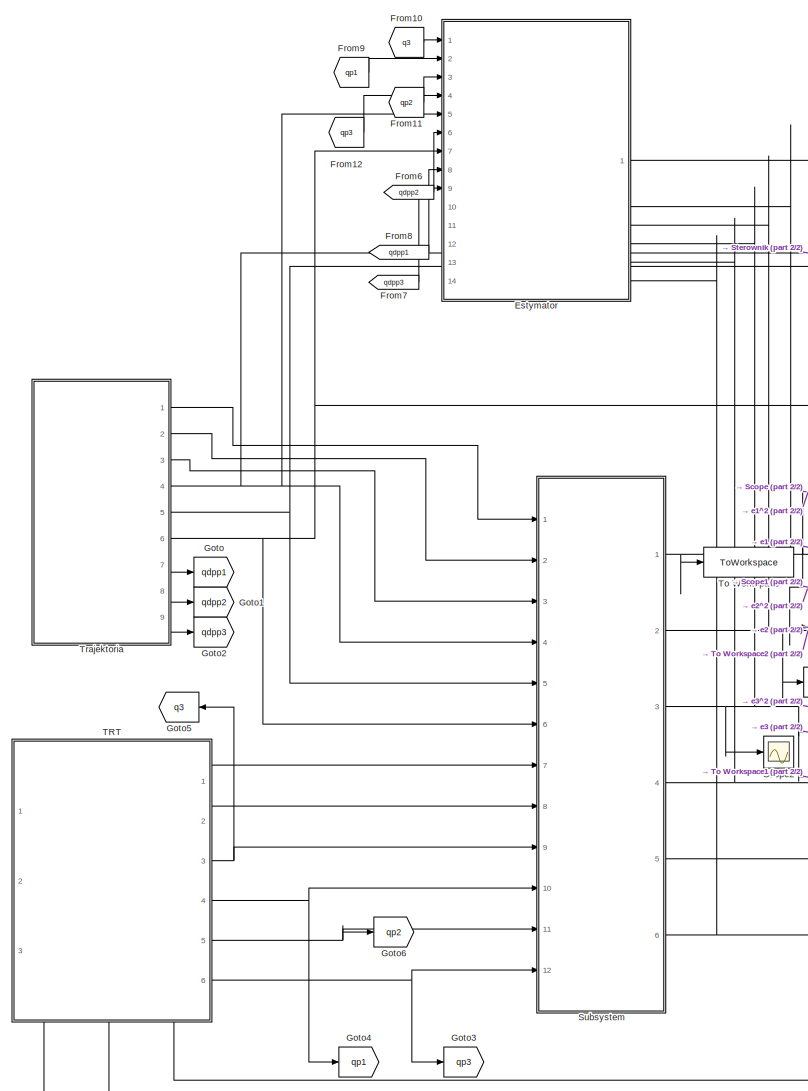
[diagram: root canvas - part 1/2, left side, full height]
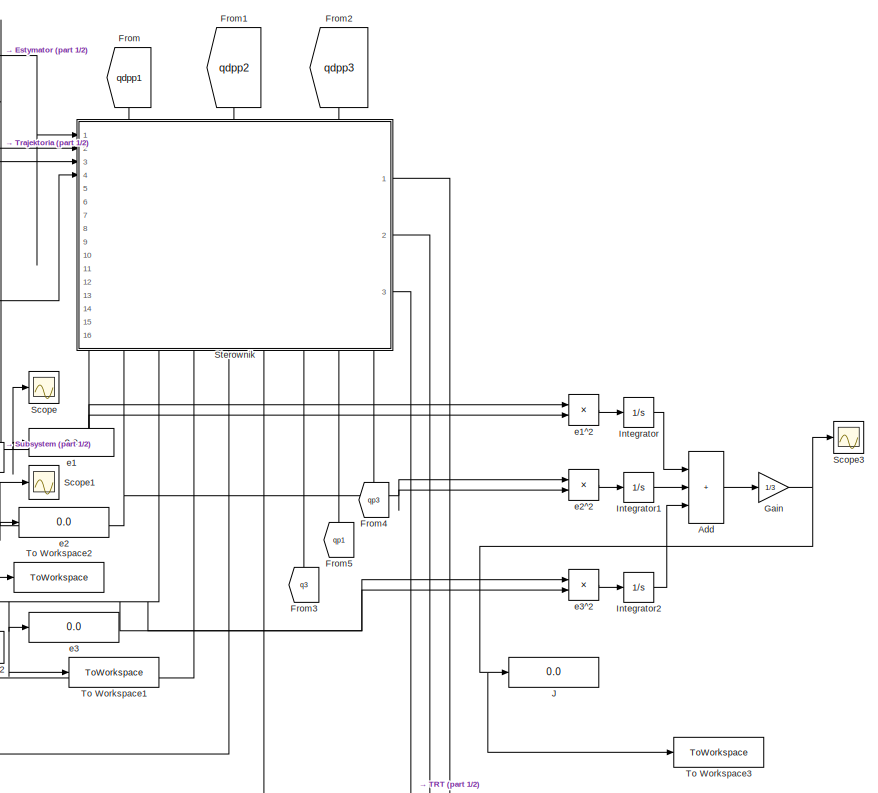
[diagram: root canvas - part 2/2, middle right region]
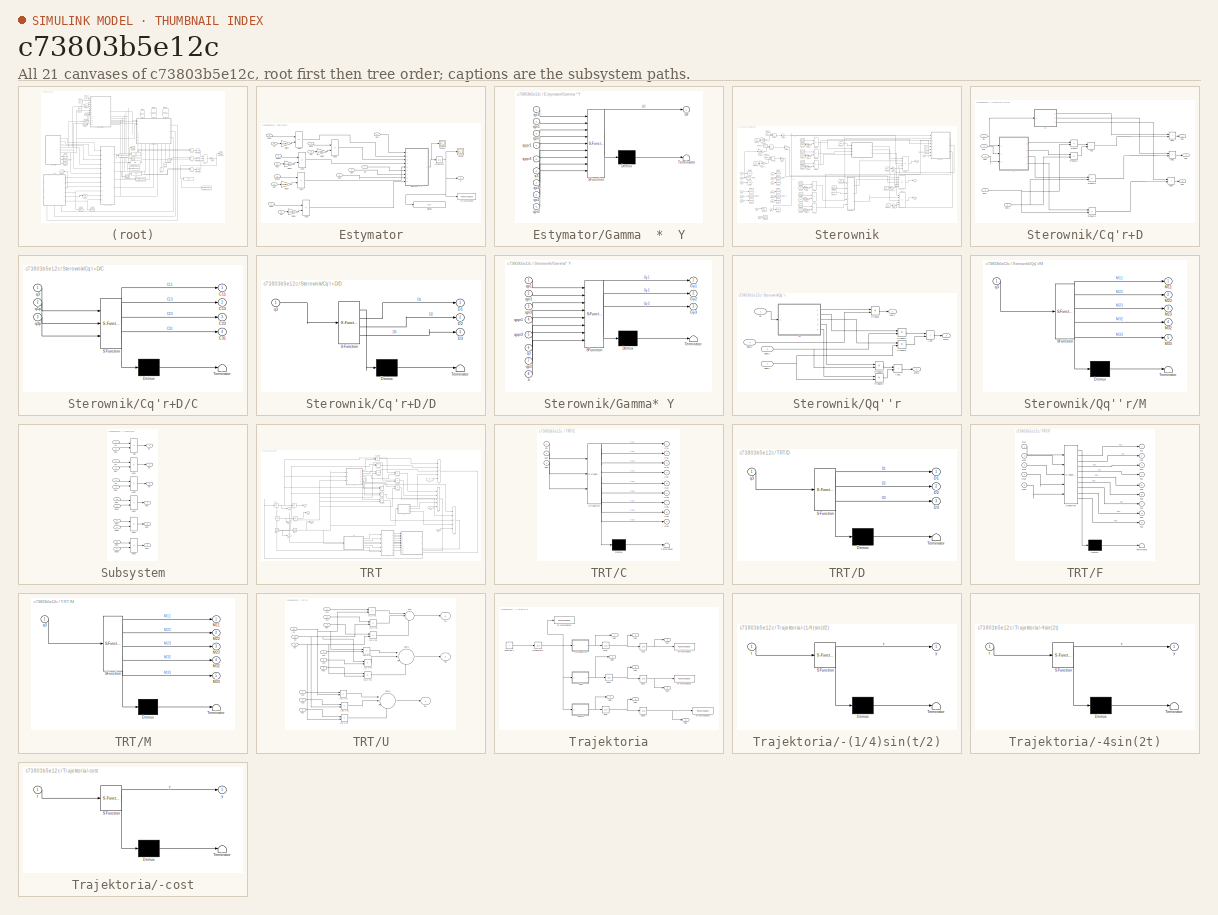
[diagram: thumbnail index - all 21 canvases of the model, root first then tree order]
MODEL slx_c73803b5e12c
KIND model
CONFIG AbsTol = auto
CONFIG EnableMultiTasking = off
CONFIG FixedStep = auto
CONFIG MaxStep = auto
CONFIG MinStep = auto
CONFIG RelTol = 1e-10
CONFIG SampleTimeConstraint = Unconstrained
CONFIG SolverName = ode45
CONFIG StartTime = 0.0
CONFIG StopTime = t_stop
BLOCK [Sum] Add
  IconShape = rectangular
  Inputs = +++
  Ports = [3, 1]
BLOCK [SubSystem] Estymator
  PortSchema = {"entries":[{"content":{"sides":[{"content":{"connectorIds":["In1","In2","In3","In4","In5","In6","In7","In8","In9"]},"type":"ConnectorPlacement.EquallySpacedRectSide","uuid":"6cfaf714-5927-4141-bb4b-e4e1d7c7a034"},{"content":{"connectorIds":["Out1","In10","In11","In12","In13","In14"],"side":"RIGHT"},"type":"ConnectorPlacement.EquallySpacedRectSide","uuid":"3cc1f1b0-216f-4715-97b4-4fb3b63e985b"},{"...<+323ch>
  Ports = [14, 1]
  RequestExecContextInheritance = off
BLOCK [Sum] Estymator/Add1
  IconShape = rectangular
  Inputs = +-
  Ports = [2, 1]
BLOCK [Sum] Estymator/Add2
  IconShape = rectangular
  Inputs = +-
  Ports = [2, 1]
BLOCK [Sum] Estymator/Add3
  IconShape = rectangular
  Inputs = +-
  Ports = [2, 1]
BLOCK [Sum] Estymator/Add4
  IconShape = rectangular
  Inputs = +-
  Ports = [2, 1]
BLOCK [Sum] Estymator/Add5
  IconShape = rectangular
  Inputs = +-
  Ports = [2, 1]
BLOCK [Display] Estymator/Display
  Decimation = 1
  Ports = [1]
BLOCK [Gain] Estymator/Gain1
  Gain = Delta
BLOCK [Gain] Estymator/Gain2
  Gain = Delta
BLOCK [Gain] Estymator/Gain3
  Gain = Delta
BLOCK [Gain] Estymator/Gain4
  Gain = Delta
BLOCK [Gain] Estymator/Gain5
  Gain = Delta
BLOCK [SubSystem] Estymator/Gamma  *  Y
  ErrorFcn = Stateflow.Translate.translate
  PermitHierarchicalResolution = ExplicitOnly
  Ports = [9, 1]
  RequestExecContextInheritance = off
  SFBlockType = MATLAB Function
  TreatAsAtomicUnit = on
BLOCK [Demux] Estymator/Gamma  *  Y/ Demux 
  Outputs = 1
  Ports = [1, 1]
BLOCK [S-Function] Estymator/Gamma  *  Y/ SFunction 
  EnableBusSupport = on
  FunctionName = sf_sfun
  Parameters = Gamma
  PortCounts = [9 2]
  Ports = [9, 2]
  SFcnIsStateOwnerBlock = off
  SFunctionDeploymentMode = off
  Tag = Stateflow S-Function 11
BLOCK [Terminator] Estymator/Gamma  *  Y/ Terminator 
BLOCK [Outport] Estymator/Gamma  *  Y/GY
BLOCK [Inport] Estymator/Gamma  *  Y/q3
  Port = 6
BLOCK [Inport] Estymator/Gamma  *  Y/qp1
BLOCK [Inport] Estymator/Gamma  *  Y/qp2
  Port = 8
BLOCK [Inport] Estymator/Gamma  *  Y/qp3
  Port = 7
BLOCK [Inport] Estymator/Gamma  *  Y/qppr1
  Port = 4
BLOCK [Inport] Estymator/Gamma  *  Y/qppr3
  Port = 5
BLOCK [Inport] Estymator/Gamma  *  Y/qpr1
  Port = 2
BLOCK [Inport] Estymator/Gamma  *  Y/qpr2
  Port = 9
BLOCK [Inport] Estymator/Gamma  *  Y/qpr3
  Port = 3
BLOCK [Integrator] Estymator/Integrator
  Ports = [1, 1]
BLOCK [Scope] Estymator/Scope
  Floating = off
  NumInputPorts = 1
  Ports = [1]
  ScopeSpecificationString = Simulink.scopes.TimeScopeBlockCfg('CurrentConfiguration', extmgr.ConfigurationSet(extmgr.Configuration('Core','General UI',true),extmgr.Configuration('Core','Source UI',true),extmgr.Configuration('Sources','WiredSimulink',true,'DataLoggingVariableName','ScopeData1'),extmgr.Configuration('Visuals','Time Domain',true,'SerializedDisplays',{struct('MinYLimReal','-761.49365','MaxYLimReal','651.17704','...<+1431ch>
BLOCK [Scope] Estymator/Scope1
  Floating = off
  NumInputPorts = 1
  Ports = [1]
  ScopeSpecificationString = Simulink.scopes.TimeScopeBlockCfg('CurrentConfiguration', extmgr.ConfigurationSet(extmgr.Configuration('Core','General UI',true),extmgr.Configuration('Core','Source UI',true),extmgr.Configuration('Sources','WiredSimulink',true,'DataLoggingVariableName','ScopeData3'),extmgr.Configuration('Visuals','Time Domain',true,'SerializedDisplays',{struct('MinYLimReal','-761.49365','MaxYLimReal','651.17704','...<+1432ch>
BLOCK [ToWorkspace] Estymator/To Workspace
  FixptAsFi = on
  MaxDataPoints = inf
  Ports = [1]
  SampleTime = -1
  VariableName = a
BLOCK [Outport] Estymator/a
BLOCK [Inport] Estymator/e1
  Port = 10
BLOCK [Inport] Estymator/e2
  NameLocation = left
  Port = 11
BLOCK [Inport] Estymator/e3
  Port = 12
BLOCK [Inport] Estymator/ep1
  Port = 13
BLOCK [Inport] Estymator/ep3
  Port = 14
BLOCK [Inport] Estymator/q3
  NameLocation = left
BLOCK [Inport] Estymator/qdp1
  Port = 5
BLOCK [Inport] Estymator/qdp2
  NameLocation = left
  Port = 6
BLOCK [Inport] Estymator/qdp3
  Port = 7
BLOCK [Inport] Estymator/qdpp1
  Port = 8
BLOCK [Inport] Estymator/qdpp3
  Port = 9
BLOCK [Inport] Estymator/qp1
  NameLocation = left
  Port = 2
BLOCK [Inport] Estymator/qp2
  NameLocation = left
  Port = 3
BLOCK [Inport] Estymator/qp3
  Port = 4
BLOCK [From] From
  GotoTag = qdpp1
  NameLocation = left
BLOCK [From] From1
  GotoTag = qdpp2
  NameLocation = left
BLOCK [From] From10
  GotoTag = q3
BLOCK [From] From11
  GotoTag = qp2
BLOCK [From] From12
  GotoTag = qp3
BLOCK [From] From2
  GotoTag = qdpp3
  NameLocation = left
BLOCK [From] From3
  GotoTag = q3
  NameLocation = right
BLOCK [From] From4
  GotoTag = qp3
  NameLocation = right
BLOCK [From] From5
  GotoTag = qp1
  NameLocation = right
BLOCK [From] From6
  GotoTag = qdpp2
BLOCK [From] From7
  GotoTag = qdpp3
BLOCK [From] From8
  GotoTag = qdpp1
BLOCK [From] From9
  GotoTag = qp1
BLOCK [Gain] Gain
  Gain = 1/3
BLOCK [Goto] Goto
  GotoTag = qdpp1
BLOCK [Goto] Goto1
  GotoTag = qdpp2
BLOCK [Goto] Goto2
  GotoTag = qdpp3
BLOCK [Goto] Goto3
  GotoTag = qp3
BLOCK [Goto] Goto4
  GotoTag = qp1
BLOCK [Goto] Goto5
  GotoTag = q3
  NameLocation = top
BLOCK [Goto] Goto6
  GotoTag = qp2
BLOCK [Integrator] Integrator
  Ports = [1, 1]
BLOCK [Integrator] Integrator1
  Ports = [1, 1]
BLOCK [Integrator] Integrator2
  Ports = [1, 1]
BLOCK [Display] J
  Decimation = 1
  Format = short_e
  Ports = [1]
BLOCK [Scope] Scope
  Floating = off
  NumInputPorts = 1
  Ports = [1]
  ScopeSpecificationString = Simulink.scopes.TimeScopeBlockCfg('CurrentConfiguration', extmgr.ConfigurationSet(extmgr.Configuration('Core','General UI',true),extmgr.Configuration('Core','Source UI',true),extmgr.Configuration('Sources','WiredSimulink',true),extmgr.Configuration('Visuals','Time Domain',true,'SerializedDisplays',{struct('MinYLimReal','-0.25373','MaxYLimReal','2.25041','YLabelReal','','MinYLimMag','0.00000','MaxY...<+1363ch>
BLOCK [Scope] Scope1
  Floating = off
  NumInputPorts = 1
  Ports = [1]
  ScopeSpecificationString = Simulink.scopes.TimeScopeBlockCfg('CurrentConfiguration', extmgr.ConfigurationSet(extmgr.Configuration('Core','General UI',true),extmgr.Configuration('Core','Source UI',true),extmgr.Configuration('Sources','WiredSimulink',true,'DataLoggingVariableName','ScopeData1'),extmgr.Configuration('Visuals','Time Domain',true,'SerializedDisplays',{struct('MinYLimReal','-0.52744','MaxYLimReal','3.39194','YLab...<+1370ch>
BLOCK [Scope] Scope2
  Floating = off
  NumInputPorts = 1
  Ports = [1]
  ScopeSpecificationString = Simulink.scopes.TimeScopeBlockCfg('CurrentConfiguration', extmgr.ConfigurationSet(extmgr.Configuration('Core','General UI',true),extmgr.Configuration('Core','Source UI',true),extmgr.Configuration('Sources','WiredSimulink',true,'DataLoggingVariableName','ScopeData2'),extmgr.Configuration('Visuals','Time Domain',true,'SerializedDisplays',{struct('MinYLimReal','-0.25331','MaxYLimReal','2.25037','YLab...<+1370ch>
BLOCK [Scope] Scope3
  Floating = off
  NumInputPorts = 1
  Ports = [1]
  ScopeSpecificationString = Simulink.scopes.TimeScopeBlockCfg('CurrentConfiguration', extmgr.ConfigurationSet(extmgr.Configuration('Core','General UI',true),extmgr.Configuration('Core','Source UI',true),extmgr.Configuration('Sources','WiredSimulink',true,'DataLoggingVariableName','ScopeData2'),extmgr.Configuration('Visuals','Time Domain',true,'SerializedDisplays',{struct('MinYLimReal','-0.17317','MaxYLimReal','1.55855','YLab...<+1394ch>
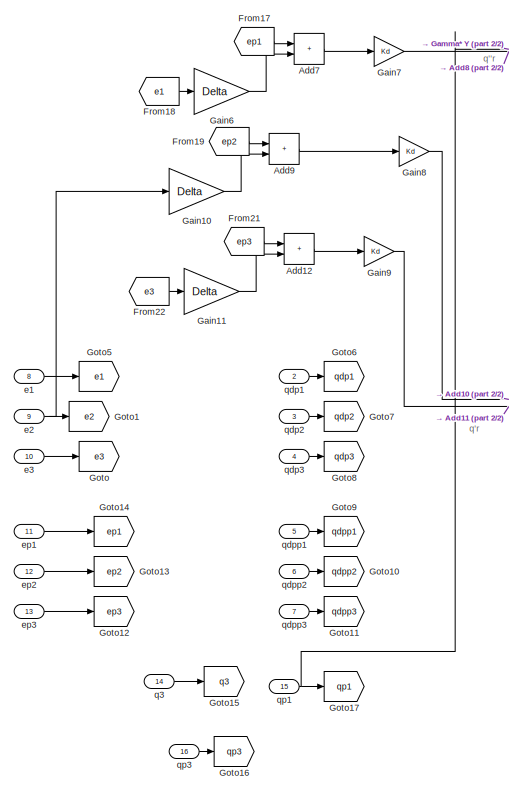
[diagram: Sterownik - part 1/2, left side, full height]
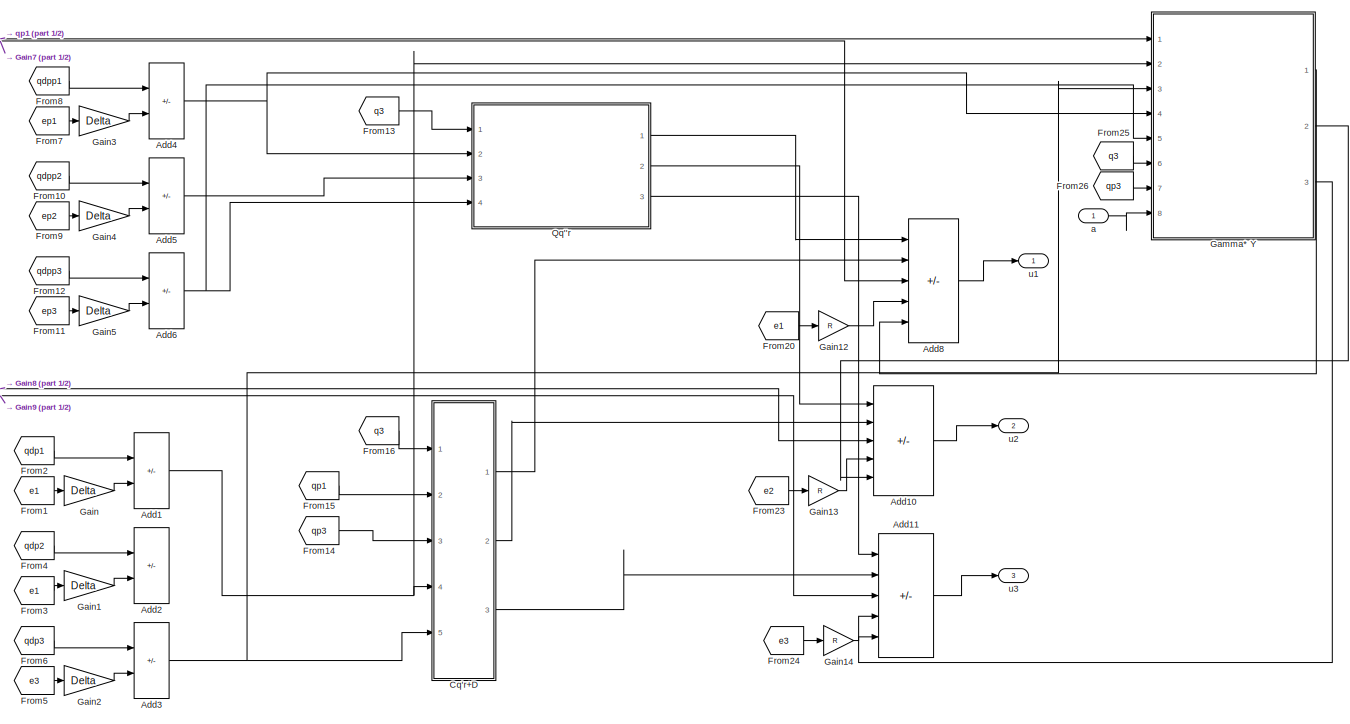
[diagram: Sterownik - part 2/2, center side, full height]
BLOCK [SubSystem] Sterownik
  PortSchema = {"entries":[{"content":{"sides":[{"content":{"connectorIds":["In1","In2","In3","In4"]},"type":"ConnectorPlacement.EquallySpacedRectSide","uuid":"3b6b04bd-f501-409c-86cd-e77f57a76356"},{"content":{"connectorIds":["Out1","Out2","Out3"],"side":"RIGHT"},"type":"ConnectorPlacement.EquallySpacedRectSide","uuid":"169b3e08-ed10-485c-953a-d5cdf046a8f4"},{"content":{"connectorIds":["In5","In6","In7"],"side"...<+493ch>
  Ports = [16, 3]
  RequestExecContextInheritance = off
BLOCK [Sum] Sterownik/Add1
  IconShape = rectangular
  Inputs = +-
  Ports = [2, 1]
BLOCK [Sum] Sterownik/Add10
  IconShape = rectangular
  Inputs = ++--+
  Ports = [5, 1]
BLOCK [Sum] Sterownik/Add11
  IconShape = rectangular
  Inputs = ++--+
  Ports = [5, 1]
BLOCK [Sum] Sterownik/Add12
  IconShape = rectangular
  Ports = [2, 1]
BLOCK [Sum] Sterownik/Add2
  Commented = on
  IconShape = rectangular
  Inputs = +-
  Ports = [2, 1]
BLOCK [Sum] Sterownik/Add3
  IconShape = rectangular
  Inputs = +-
  Ports = [2, 1]
BLOCK [Sum] Sterownik/Add4
  IconShape = rectangular
  Inputs = +-
  Ports = [2, 1]
BLOCK [Sum] Sterownik/Add5
  IconShape = rectangular
  Inputs = +-
  Ports = [2, 1]
BLOCK [Sum] Sterownik/Add6
  IconShape = rectangular
  Inputs = +-
  Ports = [2, 1]
BLOCK [Sum] Sterownik/Add7
  IconShape = rectangular
  Ports = [2, 1]
BLOCK [Sum] Sterownik/Add8
  IconShape = rectangular
  Inputs = ++--+
  Ports = [5, 1]
BLOCK [Sum] Sterownik/Add9
  IconShape = rectangular
  Ports = [2, 1]
BLOCK [SubSystem] Sterownik/Cq'r+D
  Ports = [5, 3]
  RequestExecContextInheritance = off
BLOCK [Sum] Sterownik/Cq'r+D/Add
  IconShape = rectangular
  Ports = [2, 1]
BLOCK [Sum] Sterownik/Cq'r+D/Add1
  IconShape = rectangular
  Ports = [2, 1]
BLOCK [Sum] Sterownik/Cq'r+D/Add2
  IconShape = rectangular
  Ports = [2, 1]
BLOCK [Sum] Sterownik/Cq'r+D/Add3
  IconShape = rectangular
  Ports = [2, 1]
BLOCK [SubSystem] Sterownik/Cq'r+D/C
  ErrorFcn = Stateflow.Translate.translate
  PermitHierarchicalResolution = ExplicitOnly
  Ports = [3, 4]
  RequestExecContextInheritance = off
  SFBlockType = MATLAB Function
  TreatAsAtomicUnit = on
BLOCK [Demux] Sterownik/Cq'r+D/C/ Demux 
  Outputs = 1
  Ports = [1, 1]
BLOCK [S-Function] Sterownik/Cq'r+D/C/ SFunction 
  EnableBusSupport = on
  FunctionName = sf_sfun
  Parameters = l2,l3,m3
  PortCounts = [3 5]
  Ports = [3, 5]
  SFcnIsStateOwnerBlock = off
  SFunctionDeploymentMode = off
  Tag = Stateflow S-Function 9
BLOCK [Terminator] Sterownik/Cq'r+D/C/ Terminator 
BLOCK [Outport] Sterownik/Cq'r+D/C/C11
BLOCK [Outport] Sterownik/Cq'r+D/C/C13
  Port = 2
BLOCK [Outport] Sterownik/Cq'r+D/C/C23
  Port = 3
BLOCK [Outport] Sterownik/Cq'r+D/C/C31
  Port = 4
BLOCK [Inport] Sterownik/Cq'r+D/C/q1p
  Port = 2
BLOCK [Inport] Sterownik/Cq'r+D/C/q3
BLOCK [Inport] Sterownik/Cq'r+D/C/q3p
  Port = 3
BLOCK [Outport] Sterownik/Cq'r+D/CD1
BLOCK [Outport] Sterownik/Cq'r+D/CD2
  Port = 2
BLOCK [Outport] Sterownik/Cq'r+D/CD3
  Port = 3
BLOCK [SubSystem] Sterownik/Cq'r+D/D
  ErrorFcn = Stateflow.Translate.translate
  PermitHierarchicalResolution = ExplicitOnly
  Ports = [1, 3]
  RequestExecContextInheritance = off
  SFBlockType = MATLAB Function
  TreatAsAtomicUnit = on
BLOCK [Demux] Sterownik/Cq'r+D/D/ Demux 
  Outputs = 1
  Ports = [1, 1]
BLOCK [S-Function] Sterownik/Cq'r+D/D/ SFunction 
  EnableBusSupport = on
  FunctionName = sf_sfun
  Parameters = g,l3,m2,m3
  PortCounts = [1 4]
  Ports = [1, 4]
  SFcnIsStateOwnerBlock = off
  SFunctionDeploymentMode = off
  Tag = Stateflow S-Function 10
BLOCK [Terminator] Sterownik/Cq'r+D/D/ Terminator 
BLOCK [Outport] Sterownik/Cq'r+D/D/D1
BLOCK [Outport] Sterownik/Cq'r+D/D/D2
  Port = 2
BLOCK [Outport] Sterownik/Cq'r+D/D/D3
  Port = 3
BLOCK [Inport] Sterownik/Cq'r+D/D/q3
BLOCK [Product] Sterownik/Cq'r+D/Product
  Ports = [2, 1]
BLOCK [Product] Sterownik/Cq'r+D/Product1
  Ports = [2, 1]
BLOCK [Product] Sterownik/Cq'r+D/Product2
  Ports = [2, 1]
BLOCK [Product] Sterownik/Cq'r+D/Product3
  Ports = [2, 1]
BLOCK [Inport] Sterownik/Cq'r+D/q1p
  Port = 2
BLOCK [Inport] Sterownik/Cq'r+D/q3
BLOCK [Inport] Sterownik/Cq'r+D/q3p
  Port = 3
BLOCK [Inport] Sterownik/Cq'r+D/qpr1
  Port = 4
BLOCK [Inport] Sterownik/Cq'r+D/qpr3
  Port = 5
BLOCK [From] Sterownik/From1
  GotoTag = e1
BLOCK [From] Sterownik/From10
  GotoTag = qdpp2
BLOCK [From] Sterownik/From11
  GotoTag = ep3
BLOCK [From] Sterownik/From12
  GotoTag = qdpp3
BLOCK [From] Sterownik/From13
  GotoTag = q3
BLOCK [From] Sterownik/From14
  GotoTag = qp3
BLOCK [From] Sterownik/From15
  GotoTag = qp1
BLOCK [From] Sterownik/From16
  GotoTag = q3
BLOCK [From] Sterownik/From17
  GotoTag = ep1
BLOCK [From] Sterownik/From18
  GotoTag = e1
BLOCK [From] Sterownik/From19
  GotoTag = ep2
BLOCK [From] Sterownik/From2
  GotoTag = qdp1
BLOCK [From] Sterownik/From20
  GotoTag = e1
BLOCK [From] Sterownik/From21
  GotoTag = ep3
BLOCK [From] Sterownik/From22
  GotoTag = e3
BLOCK [From] Sterownik/From23
  GotoTag = e2
BLOCK [From] Sterownik/From24
  GotoTag = e3
BLOCK [From] Sterownik/From25
  GotoTag = q3
BLOCK [From] Sterownik/From26
  GotoTag = qp3
BLOCK [From] Sterownik/From3
  Commented = on
  GotoTag = e1
BLOCK [From] Sterownik/From4
  Commented = on
  GotoTag = qdp2
BLOCK [From] Sterownik/From5
  GotoTag = e3
BLOCK [From] Sterownik/From6
  GotoTag = qdp3
BLOCK [From] Sterownik/From7
  GotoTag = ep1
BLOCK [From] Sterownik/From8
  GotoTag = qdpp1
BLOCK [From] Sterownik/From9
  GotoTag = ep2
BLOCK [Gain] Sterownik/Gain
  Gain = Delta
BLOCK [Gain] Sterownik/Gain1
  Commented = on
  Gain = Delta
BLOCK [Gain] Sterownik/Gain10
  Gain = Delta
BLOCK [Gain] Sterownik/Gain11
  Gain = Delta
BLOCK [Gain] Sterownik/Gain12
  Gain = R
BLOCK [Gain] Sterownik/Gain13
  Gain = R
BLOCK [Gain] Sterownik/Gain14
  Gain = R
BLOCK [Gain] Sterownik/Gain2
  Gain = Delta
BLOCK [Gain] Sterownik/Gain3
  Gain = Delta
BLOCK [Gain] Sterownik/Gain4
  Gain = Delta
BLOCK [Gain] Sterownik/Gain5
  Gain = Delta
BLOCK [Gain] Sterownik/Gain6
  Gain = Delta
BLOCK [Gain] Sterownik/Gain7
  Gain = Kd
BLOCK [Gain] Sterownik/Gain8
  Gain = Kd
BLOCK [Gain] Sterownik/Gain9
  Gain = Kd
BLOCK [SubSystem] Sterownik/Gamma* Y
  ErrorFcn = Stateflow.Translate.translate
  PermitHierarchicalResolution = ExplicitOnly
  Ports = [8, 3]
  RequestExecContextInheritance = off
  SFBlockType = MATLAB Function
  TreatAsAtomicUnit = on
BLOCK [Demux] Sterownik/Gamma* Y/ Demux 
  Outputs = 1
  Ports = [1, 1]
BLOCK [S-Function] Sterownik/Gamma* Y/ SFunction 
  EnableBusSupport = on
  FunctionName = sf_sfun
  PortCounts = [8 4]
  Ports = [8, 4]
  SFcnIsStateOwnerBlock = off
  SFunctionDeploymentMode = off
  Tag = Stateflow S-Function 12
BLOCK [Terminator] Sterownik/Gamma* Y/ Terminator 
BLOCK [Outport] Sterownik/Gamma* Y/Gy1
BLOCK [Outport] Sterownik/Gamma* Y/Gy2
  Port = 2
BLOCK [Outport] Sterownik/Gamma* Y/Gy3
  Port = 3
BLOCK [Inport] Sterownik/Gamma* Y/a
  Port = 8
BLOCK [Inport] Sterownik/Gamma* Y/q3
  Port = 6
BLOCK [Inport] Sterownik/Gamma* Y/qp1
BLOCK [Inport] Sterownik/Gamma* Y/qp3
  Port = 7
BLOCK [Inport] Sterownik/Gamma* Y/qppr1
  Port = 4
BLOCK [Inport] Sterownik/Gamma* Y/qppr3
  Port = 5
BLOCK [Inport] Sterownik/Gamma* Y/qpr1
  Port = 2
BLOCK [Inport] Sterownik/Gamma* Y/qpr3
  Port = 3
BLOCK [Goto] Sterownik/Goto
  GotoTag = e3
BLOCK [Goto] Sterownik/Goto1
  GotoTag = e2
BLOCK [Goto] Sterownik/Goto10
  GotoTag = qdpp2
BLOCK [Goto] Sterownik/Goto11
  GotoTag = qdpp3
BLOCK [Goto] Sterownik/Goto12
  GotoTag = ep3
BLOCK [Goto] Sterownik/Goto13
  GotoTag = ep2
BLOCK [Goto] Sterownik/Goto14
  GotoTag = ep1
BLOCK [Goto] Sterownik/Goto15
  GotoTag = q3
BLOCK [Goto] Sterownik/Goto16
  GotoTag = qp3
BLOCK [Goto] Sterownik/Goto17
  GotoTag = qp1
BLOCK [Goto] Sterownik/Goto5
  GotoTag = e1
BLOCK [Goto] Sterownik/Goto6
  GotoTag = qdp1
BLOCK [Goto] Sterownik/Goto7
  GotoTag = qdp2
BLOCK [Goto] Sterownik/Goto8
  GotoTag = qdp3
BLOCK [Goto] Sterownik/Goto9
  GotoTag = qdpp1
BLOCK [SubSystem] Sterownik/Qq''r
  Ports = [4, 3]
  RequestExecContextInheritance = off
BLOCK [Sum] Sterownik/Qq''r/Add
  IconShape = rectangular
  Ports = [2, 1]
BLOCK [Sum] Sterownik/Qq''r/Add1
  IconShape = rectangular
  Ports = [2, 1]
BLOCK [SubSystem] Sterownik/Qq''r/M
  ErrorFcn = Stateflow.Translate.translate
  PermitHierarchicalResolution = ExplicitOnly
  Ports = [1, 5]
  RequestExecContextInheritance = off
  SFBlockType = MATLAB Function
  TreatAsAtomicUnit = on
BLOCK [Demux] Sterownik/Qq''r/M/ Demux 
  Outputs = 1
  Ports = [1, 1]
BLOCK [S-Function] Sterownik/Qq''r/M/ SFunction 
  EnableBusSupport = on
  FunctionName = sf_sfun
  Parameters = l2,l3,m2,m3
  PortCounts = [1 6]
  Ports = [1, 6]
  SFcnIsStateOwnerBlock = off
  SFunctionDeploymentMode = off
  Tag = Stateflow S-Function 8
BLOCK [Terminator] Sterownik/Qq''r/M/ Terminator 
BLOCK [Outport] Sterownik/Qq''r/M/M11
BLOCK [Outport] Sterownik/Qq''r/M/M22
  Port = 2
BLOCK [Outport] Sterownik/Qq''r/M/M23
  Port = 3
BLOCK [Outport] Sterownik/Qq''r/M/M32
  Port = 4
BLOCK [Outport] Sterownik/Qq''r/M/M33
  Port = 5
BLOCK [Inport] Sterownik/Qq''r/M/q3
BLOCK [Outport] Sterownik/Qq''r/Mqr1
BLOCK [Outport] Sterownik/Qq''r/Mqr2
  Port = 2
BLOCK [Outport] Sterownik/Qq''r/Mqr3
  Port = 3
BLOCK [Product] Sterownik/Qq''r/Product
  Ports = [2, 1]
BLOCK [Product] Sterownik/Qq''r/Product1
  Ports = [2, 1]
BLOCK [Product] Sterownik/Qq''r/Product2
  Ports = [2, 1]
BLOCK [Product] Sterownik/Qq''r/Product3
  Ports = [2, 1]
BLOCK [Product] Sterownik/Qq''r/Product4
  Ports = [2, 1]
BLOCK [Inport] Sterownik/Qq''r/q3
BLOCK [Inport] Sterownik/Qq''r/qppr1
  Port = 2
BLOCK [Inport] Sterownik/Qq''r/qppr2
  Port = 3
BLOCK [Inport] Sterownik/Qq''r/qppr3
  Port = 4
BLOCK [Inport] Sterownik/a
BLOCK [Inport] Sterownik/e1
  Port = 8
BLOCK [Inport] Sterownik/e2
  Port = 9
BLOCK [Inport] Sterownik/e3
  Port = 10
BLOCK [Inport] Sterownik/ep1
  Port = 11
BLOCK [Inport] Sterownik/ep2
  Port = 12
BLOCK [Inport] Sterownik/ep3
  Port = 13
BLOCK [Inport] Sterownik/q3
  Port = 14
BLOCK [Inport] Sterownik/qdp1
  Port = 2
BLOCK [Inport] Sterownik/qdp2
  Port = 3
BLOCK [Inport] Sterownik/qdp3
  Port = 4
BLOCK [Inport] Sterownik/qdpp1
  Port = 5
BLOCK [Inport] Sterownik/qdpp2
  Port = 6
BLOCK [Inport] Sterownik/qdpp3
  Port = 7
BLOCK [Inport] Sterownik/qp1
  Port = 15
BLOCK [Inport] Sterownik/qp3
  Port = 16
BLOCK [Outport] Sterownik/u1
BLOCK [Outport] Sterownik/u2
  Port = 2
BLOCK [Outport] Sterownik/u3
  Port = 3
BLOCK [SubSystem] Subsystem
  Ports = [12, 6]
  RequestExecContextInheritance = off
BLOCK [Sum] Subsystem/Add
  IconShape = rectangular
  Inputs = +-
  Ports = [2, 1]
BLOCK [Sum] Subsystem/Add1
  IconShape = rectangular
  Inputs = +-
  Ports = [2, 1]
BLOCK [Sum] Subsystem/Add2
  IconShape = rectangular
  Inputs = +-
  Ports = [2, 1]
BLOCK [Sum] Subsystem/Add3
  IconShape = rectangular
  Inputs = +-
  Ports = [2, 1]
BLOCK [Sum] Subsystem/Add4
  IconShape = rectangular
  Inputs = +-
  Ports = [2, 1]
BLOCK [Sum] Subsystem/Add5
  IconShape = rectangular
  Inputs = +-
  Ports = [2, 1]
BLOCK [Outport] Subsystem/e1
BLOCK [Outport] Subsystem/e2
  Port = 2
BLOCK [Outport] Subsystem/e3
  Port = 3
BLOCK [Outport] Subsystem/ep1
  Port = 4
BLOCK [Outport] Subsystem/ep2
  Port = 5
BLOCK [Outport] Subsystem/ep3
  Port = 6
BLOCK [Inport] Subsystem/q1
  Port = 7
BLOCK [Inport] Subsystem/q2
  Port = 8
BLOCK [Inport] Subsystem/q3
  Port = 9
BLOCK [Inport] Subsystem/qd1
BLOCK [Inport] Subsystem/qd2
  Port = 2
BLOCK [Inport] Subsystem/qd3
  Port = 3
BLOCK [Inport] Subsystem/qp1
  Port = 10
BLOCK [Inport] Subsystem/qp2
  Port = 11
BLOCK [Inport] Subsystem/qp3
  Port = 12
BLOCK [Inport] Subsystem/qpd1
  Port = 4
BLOCK [Inport] Subsystem/qpd2
  Port = 5
BLOCK [Inport] Subsystem/qpd3
  Port = 6
BLOCK [SubSystem] TRT
  PortSchema = {"entries":[{"content":{"sides":[{"content":{"connectorIds":[]},"type":"ConnectorPlacement.EquallySpacedRectSide","uuid":"a13a475c-743e-4b68-af9c-5e746e266b9c"},{"content":{"connectorIds":["Out1","Out2","Out3","Out4","Out5","Out6"],"side":"RIGHT"},"type":"ConnectorPlacement.EquallySpacedRectSide","uuid":"c38df9ec-cc79-4f7b-9920-87d5ccf64580"},{"content":{"connectorIds":[],"side":"TOP"},"type":"Con...<+431ch>
  Ports = [3, 6]
  RequestExecContextInheritance = off
BLOCK [SubSystem] TRT/C
  ErrorFcn = Stateflow.Translate.translate
  PermitHierarchicalResolution = ExplicitOnly
  Ports = [3, 9]
  RequestExecContextInheritance = off
  SFBlockType = MATLAB Function
  TreatAsAtomicUnit = on
BLOCK [Demux] TRT/C/ Demux 
  Outputs = 1
  Ports = [1, 1]
BLOCK [S-Function] TRT/C/ SFunction 
  EnableBusSupport = on
  FunctionName = sf_sfun
  Parameters = l2,l3,m3
  PortCounts = [3 10]
  Ports = [3, 10]
  SFcnIsStateOwnerBlock = off
  SFunctionDeploymentMode = off
  Tag = Stateflow S-Function 3
BLOCK [Terminator] TRT/C/ Terminator 
BLOCK [Outport] TRT/C/C11
BLOCK [Outport] TRT/C/C12
  Port = 2
BLOCK [Outport] TRT/C/C13
  Port = 3
BLOCK [Outport] TRT/C/C21
  Port = 4
BLOCK [Outport] TRT/C/C22
  Port = 5
BLOCK [Outport] TRT/C/C23
  Port = 6
BLOCK [Outport] TRT/C/C31
  Port = 7
BLOCK [Outport] TRT/C/C32
  Port = 8
BLOCK [Outport] TRT/C/C33
  Port = 9
BLOCK [Inport] TRT/C/q1p
  Port = 2
BLOCK [Inport] TRT/C/q3
BLOCK [Inport] TRT/C/q3p
  Port = 3
BLOCK [SubSystem] TRT/D
  ErrorFcn = Stateflow.Translate.translate
  PermitHierarchicalResolution = ExplicitOnly
  Ports = [1, 3]
  RequestExecContextInheritance = off
  SFBlockType = MATLAB Function
  TreatAsAtomicUnit = on
BLOCK [Demux] TRT/D/ Demux 
  Outputs = 1
  Ports = [1, 1]
BLOCK [S-Function] TRT/D/ SFunction 
  EnableBusSupport = on
  FunctionName = sf_sfun
  Parameters = g,l3,m2,m3
  PortCounts = [1 4]
  Ports = [1, 4]
  SFcnIsStateOwnerBlock = off
  SFunctionDeploymentMode = off
  Tag = Stateflow S-Function 4
BLOCK [Terminator] TRT/D/ Terminator 
BLOCK [Outport] TRT/D/D1
BLOCK [Outport] TRT/D/D2
  Port = 2
BLOCK [Outport] TRT/D/D3
  Port = 3
BLOCK [Inport] TRT/D/q3
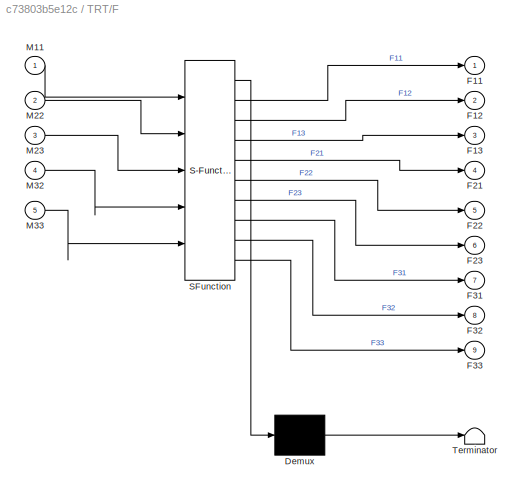
BLOCK [SubSystem] TRT/F
  ErrorFcn = Stateflow.Translate.translate
  PermitHierarchicalResolution = ExplicitOnly
  Ports = [5, 9]
  RequestExecContextInheritance = off
  SFBlockType = MATLAB Function
  TreatAsAtomicUnit = on
BLOCK [Demux] TRT/F/ Demux 
  Outputs = 1
  Ports = [1, 1]
BLOCK [S-Function] TRT/F/ SFunction 
  EnableBusSupport = on
  FunctionName = sf_sfun
  PortCounts = [5 10]
  Ports = [5, 10]
  SFcnIsStateOwnerBlock = off
  SFunctionDeploymentMode = off
  Tag = Stateflow S-Function 7
BLOCK [Terminator] TRT/F/ Terminator 
BLOCK [Outport] TRT/F/F11
BLOCK [Outport] TRT/F/F12
  Port = 2
BLOCK [Outport] TRT/F/F13
  Port = 3
BLOCK [Outport] TRT/F/F21
  Port = 4
BLOCK [Outport] TRT/F/F22
  Port = 5
BLOCK [Outport] TRT/F/F23
  Port = 6
BLOCK [Outport] TRT/F/F31
  Port = 7
BLOCK [Outport] TRT/F/F32
  Port = 8
BLOCK [Outport] TRT/F/F33
  Port = 9
BLOCK [Inport] TRT/F/M11
BLOCK [Inport] TRT/F/M22
  Port = 2
BLOCK [Inport] TRT/F/M23
  Port = 3
BLOCK [Inport] TRT/F/M32
  Port = 4
BLOCK [Inport] TRT/F/M33
  Port = 5
BLOCK [SubSystem] TRT/M
  ErrorFcn = Stateflow.Translate.translate
  PermitHierarchicalResolution = ExplicitOnly
  Ports = [1, 5]
  RequestExecContextInheritance = off
  SFBlockType = MATLAB Function
  TreatAsAtomicUnit = on
BLOCK [Demux] TRT/M/ Demux 
  Outputs = 1
  Ports = [1, 1]
BLOCK [S-Function] TRT/M/ SFunction 
  EnableBusSupport = on
  FunctionName = sf_sfun
  Parameters = l2,l3,m2,m3
  PortCounts = [1 6]
  Ports = [1, 6]
  SFcnIsStateOwnerBlock = off
  SFunctionDeploymentMode = off
  Tag = Stateflow S-Function 2
BLOCK [Terminator] TRT/M/ Terminator 
BLOCK [Outport] TRT/M/M11
BLOCK [Outport] TRT/M/M22
  Port = 2
BLOCK [Outport] TRT/M/M23
  Port = 3
BLOCK [Outport] TRT/M/M32
  Port = 4
BLOCK [Outport] TRT/M/M33
  Port = 5
BLOCK [Inport] TRT/M/q3
BLOCK [SubSystem] TRT/U
  PortSchema = {"entries":[{"content":{"sides":[{"content":{"connectorIds":["In1","In2","In3","In4","In5","In6","In7","In8","In9"]},"type":"ConnectorPlacement.EquallySpacedRectSide","uuid":"30710644-9e06-400a-91a1-da9eb46b634c"},{"content":{"connectorIds":["In10","In11","In12"],"side":"RIGHT"},"type":"ConnectorPlacement.EquallySpacedRectSide","uuid":"450ad47e-e867-455a-81bd-6c2cfcae7014"},{"content":{"connectorI...<+466ch>
  Ports = [12, 3]
  RequestExecContextInheritance = off
BLOCK [Inport] TRT/U/F11
BLOCK [Inport] TRT/U/F12
  Port = 2
BLOCK [Inport] TRT/U/F13
  Port = 4
BLOCK [Inport] TRT/U/F21
  Port = 3
BLOCK [Inport] TRT/U/F22
  Port = 5
BLOCK [Inport] TRT/U/F23
  Port = 6
BLOCK [Inport] TRT/U/F31
  Port = 7
BLOCK [Inport] TRT/U/F32
  Port = 8
BLOCK [Inport] TRT/U/F33
  Port = 9
BLOCK [Sum] TRT/U/Sum
  Inputs = |+++
  Ports = [3, 1]
BLOCK [Sum] TRT/U/Sum1
  Inputs = |+++
  Ports = [3, 1]
BLOCK [Sum] TRT/U/Sum2
  Inputs = |+++
  Ports = [3, 1]
BLOCK [Product] TRT/U/f11 x h1
  Ports = [2, 1]
BLOCK [Product] TRT/U/f12 x h2
  Ports = [2, 1]
BLOCK [Product] TRT/U/f13 x h3
  Ports = [2, 1]
BLOCK [Product] TRT/U/f21 x h1
  Ports = [2, 1]
BLOCK [Product] TRT/U/f22 x h2
  Ports = [2, 1]
BLOCK [Product] TRT/U/f23 x h3
  Ports = [2, 1]
BLOCK [Product] TRT/U/f31 x h1
  Ports = [2, 1]
BLOCK [Product] TRT/U/f32 x h2
  Ports = [2, 1]
BLOCK [Product] TRT/U/f33 x h3
  Ports = [2, 1]
BLOCK [Inport] TRT/U/h1
  Port = 12
BLOCK [Inport] TRT/U/h2
  Port = 11
BLOCK [Inport] TRT/U/h3
  Port = 10
BLOCK [Outport] TRT/U/in1
  Port = 3
BLOCK [Outport] TRT/U/in2
  Port = 2
BLOCK [Outport] TRT/U/in3
BLOCK [Product] TRT/c11*q'1
  Ports = [2, 1]
BLOCK [Product] TRT/c12*q'2
  Ports = [2, 1]
BLOCK [Product] TRT/c13*q'3
  Ports = [2, 1]
BLOCK [Product] TRT/c21*q'1
  Ports = [2, 1]
BLOCK [Product] TRT/c22*q'2
  Ports = [2, 1]
BLOCK [Product] TRT/c23*q'3
  Ports = [2, 1]
BLOCK [Product] TRT/c31*q'1
  Ports = [2, 1]
BLOCK [Product] TRT/c32*q'2
  Ports = [2, 1]
BLOCK [Product] TRT/c33*q'3
  Ports = [2, 1]
BLOCK [Sum] TRT/h1
  IconShape = rectangular
  Inputs = ----+
  Ports = [5, 1]
BLOCK [Sum] TRT/h2
  IconShape = rectangular
  Inputs = ----+
  Ports = [5, 1]
BLOCK [Sum] TRT/h3
  IconShape = rectangular
  Inputs = ----+
  Ports = [5, 1]
BLOCK [Outport] TRT/q'1
  Port = 4
BLOCK [Outport] TRT/q'2
  Port = 5
BLOCK [Outport] TRT/q'3
  Port = 6
BLOCK [Outport] TRT/q1
BLOCK [Integrator] TRT/q1'
  InitialCondition = q1p_0
  Ports = [1, 1]
BLOCK [Integrator] TRT/q1.
  InitialCondition = q1_0
  Ports = [1, 1]
BLOCK [Outport] TRT/q2
  Port = 2
BLOCK [Integrator] TRT/q2'
  InitialCondition = q2p_0
  Ports = [1, 1]
BLOCK [Integrator] TRT/q2.
  InitialCondition = q2_0
  Ports = [1, 1]
BLOCK [Outport] TRT/q3
  Port = 3
BLOCK [Integrator] TRT/q3'
  InitialCondition = q3p_0
  Ports = [1, 1]
BLOCK [Integrator] TRT/q3.
  InitialCondition = q3_0
  Ports = [1, 1]
BLOCK [Inport] TRT/u1
BLOCK [Inport] TRT/u2
  Port = 2
BLOCK [Inport] TRT/u3
  Port = 3
BLOCK [ToWorkspace] To Workspace
  FixptAsFi = on
  MaxDataPoints = inf
  Ports = [1]
  SampleTime = -1
  VariableName = e1
BLOCK [ToWorkspace] To Workspace1
  FixptAsFi = on
  MaxDataPoints = inf
  Ports = [1]
  SampleTime = -1
  VariableName = e3
BLOCK [ToWorkspace] To Workspace2
  FixptAsFi = on
  MaxDataPoints = inf
  Ports = [1]
  SampleTime = -1
  VariableName = e2
BLOCK [ToWorkspace] To Workspace3
  FixptAsFi = on
  MaxDataPoints = inf
  Ports = [1]
  SampleTime = -1
  VariableName = J
BLOCK [SubSystem] Trajektoria
  Ports = [0, 9]
  RequestExecContextInheritance = off
BLOCK [Integrator] Trajektoria/ q1d
  InitialCondition = q1d_0
  Ports = [1, 1]
BLOCK [Integrator] Trajektoria/ q1d1
  Ports = [1, 1]
BLOCK [Integrator] Trajektoria/ q2d1
  InitialCondition = q2d_0
  Ports = [1, 1]
BLOCK [Integrator] Trajektoria/ q2d2
  InitialCondition = 2
  Ports = [1, 1]
BLOCK [Integrator] Trajektoria/ q3d''
  Ports = [1, 1]
BLOCK [Integrator] Trajektoria/ q3d2
  InitialCondition = q3d_0
  Ports = [1, 1]
BLOCK [SubSystem] Trajektoria/-(1//4)sin(t//2)
  ErrorFcn = Stateflow.Translate.translate
  PermitHierarchicalResolution = ExplicitOnly
  Ports = [1, 1]
  RequestExecContextInheritance = off
  SFBlockType = MATLAB Function
  TreatAsAtomicUnit = on
BLOCK [Demux] Trajektoria/-(1//4)sin(t//2)/ Demux 
  Outputs = 1
  Ports = [1, 1]
BLOCK [S-Function] Trajektoria/-(1//4)sin(t//2)/ SFunction 
  EnableBusSupport = on
  FunctionName = sf_sfun
  PortCounts = [1 2]
  Ports = [1, 2]
  SFcnIsStateOwnerBlock = off
  SFunctionDeploymentMode = off
  Tag = Stateflow S-Function 5
BLOCK [Terminator] Trajektoria/-(1//4)sin(t//2)/ Terminator 
BLOCK [Inport] Trajektoria/-(1//4)sin(t//2)/t
BLOCK [Outport] Trajektoria/-(1//4)sin(t//2)/y
BLOCK [SubSystem] Trajektoria/-4sin(2t)
  ErrorFcn = Stateflow.Translate.translate
  PermitHierarchicalResolution = ExplicitOnly
  Ports = [1, 1]
  RequestExecContextInheritance = off
  SFBlockType = MATLAB Function
  TreatAsAtomicUnit = on
BLOCK [Demux] Trajektoria/-4sin(2t)/ Demux 
  Outputs = 1
  Ports = [1, 1]
BLOCK [S-Function] Trajektoria/-4sin(2t)/ SFunction 
  EnableBusSupport = on
  FunctionName = sf_sfun
  PortCounts = [1 2]
  Ports = [1, 2]
  SFcnIsStateOwnerBlock = off
  SFunctionDeploymentMode = off
  Tag = Stateflow S-Function 1
BLOCK [Terminator] Trajektoria/-4sin(2t)/ Terminator 
BLOCK [Inport] Trajektoria/-4sin(2t)/t
BLOCK [Outport] Trajektoria/-4sin(2t)/y
BLOCK [SubSystem] Trajektoria/-cost
  ErrorFcn = Stateflow.Translate.translate
  PermitHierarchicalResolution = ExplicitOnly
  Ports = [1, 1]
  RequestExecContextInheritance = off
  SFBlockType = MATLAB Function
  TreatAsAtomicUnit = on
BLOCK [Demux] Trajektoria/-cost/ Demux 
  Outputs = 1
  Ports = [1, 1]
BLOCK [S-Function] Trajektoria/-cost/ SFunction 
  EnableBusSupport = on
  FunctionName = sf_sfun
  PortCounts = [1 2]
  Ports = [1, 2]
  SFcnIsStateOwnerBlock = off
  SFunctionDeploymentMode = off
  Tag = Stateflow S-Function 6
BLOCK [Terminator] Trajektoria/-cost/ Terminator 
BLOCK [Inport] Trajektoria/-cost/t
BLOCK [Outport] Trajektoria/-cost/y
BLOCK [Constant] Trajektoria/Constant1
BLOCK [Integrator] Trajektoria/Integrator2
  Ports = [1, 1]
BLOCK [ToWorkspace] Trajektoria/To Workspace
  FixptAsFi = on
  MaxDataPoints = inf
  Ports = [1]
  SampleTime = -1
  VariableName = q1ds
BLOCK [ToWorkspace] Trajektoria/To Workspace1
  FixptAsFi = on
  MaxDataPoints = inf
  Ports = [1]
  SampleTime = -1
  VariableName = q2ds
BLOCK [ToWorkspace] Trajektoria/To Workspace2
  FixptAsFi = on
  MaxDataPoints = inf
  Ports = [1]
  SampleTime = -1
  VariableName = t
BLOCK [ToWorkspace] Trajektoria/To Workspace3
  FixptAsFi = on
  MaxDataPoints = inf
  Ports = [1]
  SampleTime = -1
  VariableName = q3ds
BLOCK [Outport] Trajektoria/q1d
BLOCK [Outport] Trajektoria/q1d'
  Port = 4
BLOCK [Outport] Trajektoria/q2d
  Port = 2
BLOCK [Outport] Trajektoria/q2d'
  Port = 5
BLOCK [Outport] Trajektoria/q3d
  Port = 3
BLOCK [Outport] Trajektoria/q3d'
  Port = 6
BLOCK [Outport] Trajektoria/qd''1
  Port = 7
BLOCK [Outport] Trajektoria/qd''2
  Port = 8
BLOCK [Outport] Trajektoria/qd''3
  Port = 9
BLOCK [Display] e1
  Decimation = 1
  Format = short_e
  Ports = [1]
BLOCK [Product] e1^2
  Ports = [2, 1]
BLOCK [Display] e2
  Decimation = 1
  Format = short_e
  Ports = [1]
BLOCK [Product] e2^2
  Ports = [2, 1]
BLOCK [Display] e3
  Decimation = 1
  Format = short_e
  Ports = [1]
BLOCK [Product] e3^2
  Ports = [2, 1]
ANNOTATION Sterownik: q''r
ANNOTATION Sterownik: q'r
LINE Add:1 -> Gain:1
LINE Estymator/Add1:1 -> Estymator/Gamma  *  Y:5
LINE Estymator/Add2:1 -> Estymator/Gamma  *  Y:2
LINE Estymator/Add3:1 -> Estymator/Gamma  *  Y:3
LINE Estymator/Add4:1 -> Estymator/Gamma  *  Y:4
LINE Estymator/Add5:1 -> Estymator/Gamma  *  Y:9
LINE Estymator/Gain1:1 -> Estymator/Add1:2
LINE Estymator/Gain2:1 -> Estymator/Add2:2
LINE Estymator/Gain3:1 -> Estymator/Add4:2
LINE Estymator/Gain4:1 -> Estymator/Add3:2
LINE Estymator/Gain5:1 -> Estymator/Add5:2
NET Estymator/Gamma  *  Y:1 -> Estymator/Integrator:1, Estymator/Scope1:1
NET Estymator/Integrator:1 -> Estymator/Display:1, Estymator/Scope:1, Estymator/To Workspace:1, Estymator/a:1
LINE Estymator/e1:1 -> Estymator/Gain2:1
LINE Estymator/e2:1 -> Estymator/Gain5:1
LINE Estymator/e3:1 -> Estymator/Gain4:1
LINE Estymator/ep1:1 -> Estymator/Gain3:1
LINE Estymator/ep3:1 -> Estymator/Gain1:1
LINE Estymator/q3:1 -> Estymator/Gamma  *  Y:6
LINE Estymator/qdp1:1 -> Estymator/Add2:1
LINE Estymator/qdp2:1 -> Estymator/Add5:1
LINE Estymator/qdp3:1 -> Estymator/Add3:1
LINE Estymator/qdpp1:1 -> Estymator/Add4:1
LINE Estymator/qdpp3:1 -> Estymator/Add1:1
LINE Estymator/qp1:1 -> Estymator/Gamma  *  Y:1
LINE Estymator/qp2:1 -> Estymator/Gamma  *  Y:8
LINE Estymator/qp3:1 -> Estymator/Gamma  *  Y:7
LINE Estymator:1 -> Sterownik:1
LINE From10:1 -> Estymator:1
LINE From11:1 -> Estymator:3
LINE From12:1 -> Estymator:4
LINE From1:1 -> Sterownik:6
LINE From2:1 -> Sterownik:7
LINE From3:1 -> Sterownik:14
LINE From4:1 -> Sterownik:16
LINE From5:1 -> Sterownik:15
LINE From6:1 -> Estymator:6
LINE From7:1 -> Estymator:9
LINE From8:1 -> Estymator:8
LINE From9:1 -> Estymator:2
LINE From:1 -> Sterownik:5
NET Gain:1 -> J:1, Scope3:1, To Workspace3:1
LINE Integrator1:1 -> Add:2
LINE Integrator2:1 -> Add:3
LINE Integrator:1 -> Add:1
LINE Sterownik/Add10:1 -> Sterownik/u2:1
LINE Sterownik/Add11:1 -> Sterownik/u3:1
LINE Sterownik/Add12:1 -> Sterownik/Gain9:1
NET Sterownik/Add1:1 -> Sterownik/Cq'r+D:4, Sterownik/Gamma* Y:2
NET Sterownik/Add3:1 -> Sterownik/Cq'r+D:5, Sterownik/Gamma* Y:3
NET Sterownik/Add4:1 -> Sterownik/Gamma* Y:4, Sterownik/Qq''r:2
LINE Sterownik/Add5:1 -> Sterownik/Qq''r:3
NET Sterownik/Add6:1 -> Sterownik/Gamma* Y:5, Sterownik/Qq''r:4
LINE Sterownik/Add7:1 -> Sterownik/Gain7:1
LINE Sterownik/Add8:1 -> Sterownik/u1:1
LINE Sterownik/Add9:1 -> Sterownik/Gain8:1
LINE Sterownik/Cq'r+D/Add1:1 -> Sterownik/Cq'r+D/CD1:1
LINE Sterownik/Cq'r+D/Add2:1 -> Sterownik/Cq'r+D/CD2:1
LINE Sterownik/Cq'r+D/Add3:1 -> Sterownik/Cq'r+D/CD3:1
LINE Sterownik/Cq'r+D/Add:1 -> Sterownik/Cq'r+D/Add1:2
LINE Sterownik/Cq'r+D/C:1 -> Sterownik/Cq'r+D/Product:1
LINE Sterownik/Cq'r+D/C:2 -> Sterownik/Cq'r+D/Product1:1
LINE Sterownik/Cq'r+D/C:3 -> Sterownik/Cq'r+D/Product2:1
LINE Sterownik/Cq'r+D/C:4 -> Sterownik/Cq'r+D/Product3:1
LINE Sterownik/Cq'r+D/D:1 -> Sterownik/Cq'r+D/Add1:1
LINE Sterownik/Cq'r+D/D:2 -> Sterownik/Cq'r+D/Add2:1
LINE Sterownik/Cq'r+D/D:3 -> Sterownik/Cq'r+D/Add3:1
LINE Sterownik/Cq'r+D/Product1:1 -> Sterownik/Cq'r+D/Add:2
LINE Sterownik/Cq'r+D/Product2:1 -> Sterownik/Cq'r+D/Add2:2
LINE Sterownik/Cq'r+D/Product3:1 -> Sterownik/Cq'r+D/Add3:2
LINE Sterownik/Cq'r+D/Product:1 -> Sterownik/Cq'r+D/Add:1
LINE Sterownik/Cq'r+D/q1p:1 -> Sterownik/Cq'r+D/C:2
NET Sterownik/Cq'r+D/q3:1 -> Sterownik/Cq'r+D/C:1, Sterownik/Cq'r+D/D:1
LINE Sterownik/Cq'r+D/q3p:1 -> Sterownik/Cq'r+D/C:3
NET Sterownik/Cq'r+D/qpr1:1 -> Sterownik/Cq'r+D/Product3:2, Sterownik/Cq'r+D/Product:2
NET Sterownik/Cq'r+D/qpr3:1 -> Sterownik/Cq'r+D/Product1:2, Sterownik/Cq'r+D/Product2:2
LINE Sterownik/Cq'r+D:1 -> Sterownik/Add8:2
LINE Sterownik/Cq'r+D:2 -> Sterownik/Add10:2
LINE Sterownik/Cq'r+D:3 -> Sterownik/Add11:2
LINE Sterownik/From10:1 -> Sterownik/Add5:1
LINE Sterownik/From11:1 -> Sterownik/Gain5:1
LINE Sterownik/From12:1 -> Sterownik/Add6:1
LINE Sterownik/From13:1 -> Sterownik/Qq''r:1
LINE Sterownik/From14:1 -> Sterownik/Cq'r+D:3
LINE Sterownik/From15:1 -> Sterownik/Cq'r+D:2
LINE Sterownik/From16:1 -> Sterownik/Cq'r+D:1
LINE Sterownik/From17:1 -> Sterownik/Add7:1
LINE Sterownik/From18:1 -> Sterownik/Gain6:1
LINE Sterownik/From19:1 -> Sterownik/Add9:1
LINE Sterownik/From1:1 -> Sterownik/Gain:1
LINE Sterownik/From20:1 -> Sterownik/Gain12:1
LINE Sterownik/From21:1 -> Sterownik/Add12:1
LINE Sterownik/From22:1 -> Sterownik/Gain11:1
LINE Sterownik/From23:1 -> Sterownik/Gain13:1
LINE Sterownik/From24:1 -> Sterownik/Gain14:1
LINE Sterownik/From25:1 -> Sterownik/Gamma* Y:6
LINE Sterownik/From26:1 -> Sterownik/Gamma* Y:7
LINE Sterownik/From2:1 -> Sterownik/Add1:1
LINE Sterownik/From3:1 -> Sterownik/Gain1:1
LINE Sterownik/From4:1 -> Sterownik/Add2:1
LINE Sterownik/From5:1 -> Sterownik/Gain2:1
LINE Sterownik/From6:1 -> Sterownik/Add3:1
LINE Sterownik/From7:1 -> Sterownik/Gain3:1
LINE Sterownik/From8:1 -> Sterownik/Add4:1
LINE Sterownik/From9:1 -> Sterownik/Gain4:1
LINE Sterownik/Gain10:1 -> Sterownik/Add9:2
LINE Sterownik/Gain11:1 -> Sterownik/Add12:2
LINE Sterownik/Gain12:1 -> Sterownik/Add8:4
LINE Sterownik/Gain13:1 -> Sterownik/Add10:4
LINE Sterownik/Gain14:1 -> Sterownik/Add11:4
LINE Sterownik/Gain1:1 -> Sterownik/Add2:2
LINE Sterownik/Gain2:1 -> Sterownik/Add3:2
LINE Sterownik/Gain3:1 -> Sterownik/Add4:2
LINE Sterownik/Gain4:1 -> Sterownik/Add5:2
LINE Sterownik/Gain5:1 -> Sterownik/Add6:2
LINE Sterownik/Gain6:1 -> Sterownik/Add7:2
LINE Sterownik/Gain7:1 -> Sterownik/Add8:3
LINE Sterownik/Gain8:1 -> Sterownik/Add10:3
LINE Sterownik/Gain9:1 -> Sterownik/Add11:3
LINE Sterownik/Gain:1 -> Sterownik/Add1:2
LINE Sterownik/Gamma* Y:1 -> Sterownik/Add8:5
LINE Sterownik/Gamma* Y:2 -> Sterownik/Add10:5
LINE Sterownik/Gamma* Y:3 -> Sterownik/Add11:5
LINE Sterownik/Qq''r/Add1:1 -> Sterownik/Qq''r/Mqr3:1
LINE Sterownik/Qq''r/Add:1 -> Sterownik/Qq''r/Mqr2:1
LINE Sterownik/Qq''r/M:1 -> Sterownik/Qq''r/Product:1
LINE Sterownik/Qq''r/M:2 -> Sterownik/Qq''r/Product1:1
LINE Sterownik/Qq''r/M:3 -> Sterownik/Qq''r/Product2:1
LINE Sterownik/Qq''r/M:4 -> Sterownik/Qq''r/Product3:1
LINE Sterownik/Qq''r/M:5 -> Sterownik/Qq''r/Product4:1
LINE Sterownik/Qq''r/Product1:1 -> Sterownik/Qq''r/Add:1
LINE Sterownik/Qq''r/Product2:1 -> Sterownik/Qq''r/Add:2
LINE Sterownik/Qq''r/Product3:1 -> Sterownik/Qq''r/Add1:1
LINE Sterownik/Qq''r/Product4:1 -> Sterownik/Qq''r/Add1:2
LINE Sterownik/Qq''r/Product:1 -> Sterownik/Qq''r/Mqr1:1
LINE Sterownik/Qq''r/q3:1 -> Sterownik/Qq''r/M:1
LINE Sterownik/Qq''r/qppr1:1 -> Sterownik/Qq''r/Product:2
NET Sterownik/Qq''r/qppr2:1 -> Sterownik/Qq''r/Product1:2, Sterownik/Qq''r/Product3:2
NET Sterownik/Qq''r/qppr3:1 -> Sterownik/Qq''r/Product2:2, Sterownik/Qq''r/Product4:2
LINE Sterownik/Qq''r:1 -> Sterownik/Add8:1
LINE Sterownik/Qq''r:2 -> Sterownik/Add10:1
LINE Sterownik/Qq''r:3 -> Sterownik/Add11:1
LINE Sterownik/a:1 -> Sterownik/Gamma* Y:8
LINE Sterownik/e1:1 -> Sterownik/Goto5:1
NET Sterownik/e2:1 -> Sterownik/Gain10:1, Sterownik/Goto1:1
LINE Sterownik/e3:1 -> Sterownik/Goto:1
LINE Sterownik/ep1:1 -> Sterownik/Goto14:1
LINE Sterownik/ep2:1 -> Sterownik/Goto13:1
LINE Sterownik/ep3:1 -> Sterownik/Goto12:1
LINE Sterownik/q3:1 -> Sterownik/Goto15:1
LINE Sterownik/qdp1:1 -> Sterownik/Goto6:1
LINE Sterownik/qdp2:1 -> Sterownik/Goto7:1
LINE Sterownik/qdp3:1 -> Sterownik/Goto8:1
LINE Sterownik/qdpp1:1 -> Sterownik/Goto9:1
LINE Sterownik/qdpp2:1 -> Sterownik/Goto10:1
LINE Sterownik/qdpp3:1 -> Sterownik/Goto11:1
NET Sterownik/qp1:1 -> Sterownik/Gamma* Y:1, Sterownik/Goto17:1
LINE Sterownik/qp3:1 -> Sterownik/Goto16:1
LINE Sterownik:1 -> TRT:1
LINE Sterownik:2 -> TRT:2
LINE Sterownik:3 -> TRT:3
LINE Subsystem/Add1:1 -> Subsystem/e2:1
LINE Subsystem/Add2:1 -> Subsystem/e3:1
LINE Subsystem/Add3:1 -> Subsystem/ep1:1
LINE Subsystem/Add4:1 -> Subsystem/ep2:1
LINE Subsystem/Add5:1 -> Subsystem/ep3:1
LINE Subsystem/Add:1 -> Subsystem/e1:1
LINE Subsystem/q1:1 -> Subsystem/Add:1
LINE Subsystem/q2:1 -> Subsystem/Add1:1
LINE Subsystem/q3:1 -> Subsystem/Add2:1
LINE Subsystem/qd1:1 -> Subsystem/Add:2
LINE Subsystem/qd2:1 -> Subsystem/Add1:2
LINE Subsystem/qd3:1 -> Subsystem/Add2:2
LINE Subsystem/qp1:1 -> Subsystem/Add3:1
LINE Subsystem/qp2:1 -> Subsystem/Add4:1
LINE Subsystem/qp3:1 -> Subsystem/Add5:1
LINE Subsystem/qpd1:1 -> Subsystem/Add3:2
LINE Subsystem/qpd2:1 -> Subsystem/Add4:2
LINE Subsystem/qpd3:1 -> Subsystem/Add5:2
NET Subsystem:1 -> Estymator:10, Scope:1, Sterownik:8, To Workspace:1, e1:1, e1^2:1, e1^2:2
NET Subsystem:2 -> Estymator:11, Scope1:1, Sterownik:9, To Workspace2:1, e2:1, e2^2:1, e2^2:2
NET Subsystem:3 -> Estymator:12, Scope2:1, Sterownik:10, To Workspace1:1, e3:1, e3^2:1, e3^2:2
NET Subsystem:4 -> Estymator:13, Sterownik:11
LINE Subsystem:5 -> Sterownik:12
NET Subsystem:6 -> Estymator:14, Sterownik:13
LINE TRT/C:1 -> TRT/c11*q'1:2
LINE TRT/C:2 -> TRT/c12*q'2:2
LINE TRT/C:3 -> TRT/c13*q'3:1
LINE TRT/C:4 -> TRT/c21*q'1:2
LINE TRT/C:5 -> TRT/c22*q'2:2
LINE TRT/C:6 -> TRT/c23*q'3:1
LINE TRT/C:7 -> TRT/c31*q'1:2
LINE TRT/C:8 -> TRT/c32*q'2:2
LINE TRT/C:9 -> TRT/c33*q'3:1
LINE TRT/D:1 -> TRT/h1:4
LINE TRT/D:2 -> TRT/h2:4
LINE TRT/D:3 -> TRT/h3:4
LINE TRT/F:1 -> TRT/U:1
LINE TRT/F:2 -> TRT/U:2
LINE TRT/F:3 -> TRT/U:3
LINE TRT/F:4 -> TRT/U:4
LINE TRT/F:5 -> TRT/U:5
LINE TRT/F:6 -> TRT/U:6
LINE TRT/F:7 -> TRT/U:7
LINE TRT/F:8 -> TRT/U:8
LINE TRT/F:9 -> TRT/U:9
LINE TRT/M:1 -> TRT/F:1
LINE TRT/M:2 -> TRT/F:2
LINE TRT/M:3 -> TRT/F:3
LINE TRT/M:4 -> TRT/F:4
LINE TRT/M:5 -> TRT/F:5
LINE TRT/U/F11:1 -> TRT/U/f11 x h1:1
LINE TRT/U/F12:1 -> TRT/U/f12 x h2:1
LINE TRT/U/F13:1 -> TRT/U/f13 x h3:1
LINE TRT/U/F21:1 -> TRT/U/f21 x h1:2
LINE TRT/U/F22:1 -> TRT/U/f22 x h2:2
LINE TRT/U/F23:1 -> TRT/U/f23 x h3:2
LINE TRT/U/F31:1 -> TRT/U/f31 x h1:1
LINE TRT/U/F32:1 -> TRT/U/f32 x h2:1
LINE TRT/U/F33:1 -> TRT/U/f33 x h3:1
LINE TRT/U/Sum1:1 -> TRT/U/in2:1
LINE TRT/U/Sum2:1 -> TRT/U/in3:1
LINE TRT/U/Sum:1 -> TRT/U/in1:1
LINE TRT/U/f11 x h1:1 -> TRT/U/Sum:1
LINE TRT/U/f12 x h2:1 -> TRT/U/Sum:2
LINE TRT/U/f13 x h3:1 -> TRT/U/Sum:3
LINE TRT/U/f21 x h1:1 -> TRT/U/Sum1:1
LINE TRT/U/f22 x h2:1 -> TRT/U/Sum1:2
LINE TRT/U/f23 x h3:1 -> TRT/U/Sum1:3
LINE TRT/U/f31 x h1:1 -> TRT/U/Sum2:1
LINE TRT/U/f32 x h2:1 -> TRT/U/Sum2:2
LINE TRT/U/f33 x h3:1 -> TRT/U/Sum2:3
NET TRT/U/h1:1 -> TRT/U/f11 x h1:2, TRT/U/f21 x h1:1, TRT/U/f31 x h1:2
NET TRT/U/h2:1 -> TRT/U/f12 x h2:2, TRT/U/f22 x h2:1, TRT/U/f32 x h2:2
NET TRT/U/h3:1 -> TRT/U/f13 x h3:2, TRT/U/f23 x h3:1, TRT/U/f33 x h3:2
LINE TRT/U:1 -> TRT/q3':1
LINE TRT/U:2 -> TRT/q2':1
LINE TRT/U:3 -> TRT/q1':1
LINE TRT/c11*q'1:1 -> TRT/h1:1
LINE TRT/c12*q'2:1 -> TRT/h1:2
LINE TRT/c13*q'3:1 -> TRT/h1:3
LINE TRT/c21*q'1:1 -> TRT/h2:1
LINE TRT/c22*q'2:1 -> TRT/h2:2
LINE TRT/c23*q'3:1 -> TRT/h2:3
LINE TRT/c31*q'1:1 -> TRT/h3:1
LINE TRT/c32*q'2:1 -> TRT/h3:2
LINE TRT/c33*q'3:1 -> TRT/h3:3
LINE TRT/h1:1 -> TRT/U:12
LINE TRT/h2:1 -> TRT/U:11
LINE TRT/h3:1 -> TRT/U:10
NET TRT/q1':1 -> TRT/C:2, TRT/c11*q'1:1, TRT/c21*q'1:1, TRT/c31*q'1:1, TRT/q'1:1, TRT/q1.:1
LINE TRT/q1.:1 -> TRT/q1:1
NET TRT/q2':1 -> TRT/c12*q'2:1, TRT/c22*q'2:1, TRT/c32*q'2:1, TRT/q'2:1, TRT/q2.:1
LINE TRT/q2.:1 -> TRT/q2:1
NET TRT/q3':1 -> TRT/C:3, TRT/c13*q'3:2, TRT/c23*q'3:2, TRT/c33*q'3:2, TRT/q'3:1, TRT/q3.:1
NET TRT/q3.:1 -> TRT/C:1, TRT/D:1, TRT/M:1, TRT/q3:1
LINE TRT/u1:1 -> TRT/h1:5
LINE TRT/u2:1 -> TRT/h2:5
LINE TRT/u3:1 -> TRT/h3:5
LINE TRT:1 -> Subsystem:7
LINE TRT:2 -> Subsystem:8
NET TRT:3 -> Goto5:1, Subsystem:9
NET TRT:4 -> Goto4:1, Subsystem:10
NET TRT:5 -> Goto6:1, Subsystem:11
NET TRT:6 -> Goto3:1, Subsystem:12
NET Trajektoria/ q1d1:1 -> Trajektoria/ q1d:1, Trajektoria/q1d':1
NET Trajektoria/ q1d:1 -> Trajektoria/To Workspace:1, Trajektoria/q1d:1
NET Trajektoria/ q2d1:1 -> Trajektoria/To Workspace1:1, Trajektoria/q2d:1
NET Trajektoria/ q2d2:1 -> Trajektoria/ q2d1:1, Trajektoria/q2d':1
NET Trajektoria/ q3d'':1 -> Trajektoria/ q3d2:1, Trajektoria/q3d':1
NET Trajektoria/ q3d2:1 -> Trajektoria/To Workspace3:1, Trajektoria/q3d:1
NET Trajektoria/-(1//4)sin(t//2):1 -> Trajektoria/ q1d1:1, Trajektoria/qd''1:1
NET Trajektoria/-4sin(2t):1 -> Trajektoria/ q3d'':1, Trajektoria/qd''3:1
NET Trajektoria/-cost:1 -> Trajektoria/ q2d2:1, Trajektoria/qd''2:1
LINE Trajektoria/Constant1:1 -> Trajektoria/Integrator2:1
NET Trajektoria/Integrator2:1 -> Trajektoria/-(1//4)sin(t//2):1, Trajektoria/-4sin(2t):1, Trajektoria/-cost:1, Trajektoria/To Workspace2:1
LINE Trajektoria:1 -> Subsystem:1
LINE Trajektoria:2 -> Subsystem:2
LINE Trajektoria:3 -> Subsystem:3
NET Trajektoria:4 -> Estymator:5, Sterownik:2, Subsystem:4
NET Trajektoria:5 -> Sterownik:3, Subsystem:5
NET Trajektoria:6 -> Estymator:7, Sterownik:4, Subsystem:6
LINE Trajektoria:7 -> Goto:1
LINE Trajektoria:8 -> Goto1:1
LINE Trajektoria:9 -> Goto2:1
LINE e1^2:1 -> Integrator:1
LINE e2^2:1 -> Integrator1:1
LINE e3^2:1 -> Integrator2:1
note: NET lines group one-source signal fan-out (src -> all destinations, sorted); 1:1 wires keep LINE
CHART Trajektoria/-cost states=1 transitions=1
  STATE_LABEL 'eML_blk_kernel()'
  STATE_LABEL 'SCRIPT:\nfunction y = fcn(t)\n\ny = -cos(t);\n'
CHART TRT/F states=1 transitions=1
  STATE_LABEL 'eML_blk_kernel()'
  STATE_LABEL 'SCRIPT:\nfunction [F11,F12,F13,F21,F22,F23,F31,F32,F33] =fcn(M11, M22, M23, M32, M33)\n%(wiersz, kolumna)\n%M11, M22,  M33, M23, M32\n%% output\n%M=[0,0,0;0,0,0;0,0,0];\nM = [M11, 0, 0;\n     0, M22, M23;\n     0,M32, M33];\n\nF1 = inv(M);\nF11 = F1(1,1);\nF12 = F1(1,2);\nF13 = F1(1,3);\nF21 = F1(2,1);\nF22 = F1(2,2);\nF23 = F1(2,3);\nF31 = F1(3,1);\nF32 = F1(3,2);\nF33 = F1(3,3);\n'
CHART Sterownik/Qq''r/M states=1 transitions=1
  STATE_LABEL 'eML_blk_kernel()'
  STATE_LABEL 'SCRIPT:\nfunction [M11, M22, M23, M32, M33] =fcn(l2,l3, m2, m3, q3)\n%(wiersz, kolumna)\n%M11, M22,  M33, M23, M32\n%% output\n%M=[0,0,0;0,0,0;0,0,0];\nM11 = (1/3)*m2*(l2^2)+(m3*(l2^2)+(cos(q3)^2) + m3*l2*l3*cos(3));\nM22 = m2+m3;\nM23 = (1/2)*m3*l2*l3*cos(q3);\nM32 = (1/2)*m3*l2*l3*cos(q3);\nM33 = 0;\n%M0=0;'
CHART Sterownik/Cq'r+D/C states=1 transitions=1
  STATE_LABEL 'eML_blk_kernel()'
  STATE_LABEL 'SCRIPT:\nfunction [C11, C13,C23, C31] =fcn( q3, q1p, q3p, m3, l2, l3)\n%(wiersz, kolumna)\n%M11, M22,  M33, M23, M32\n%% output\n%M=[0,0,0;0,0,0;0,0,0];\nC11 = -q3p*((1/2)*m3*l2*l3*sin(q3) + sin(q3)*cos(q3));\nC13 = -q1p*((1/2)*m3*l2*l3*sin(q3) + sin(q3)*cos(q3));\nC23 = -q3p*(1/2)*m3*(l3*l2)*sin(q3)*cos(q3);\nC31 = q1p*((1/2)*m3*l2*l3*sin(q3) + sin(q3)*cos(q3));\n%C0 = 0;\n% C12 = 0;\n% C21 = 0;\n% C22 = 0; \n...<+21ch>'
CHART Sterownik/Cq'r+D/D states=1 transitions=1
  STATE_LABEL 'eML_blk_kernel()'
  STATE_LABEL 'SCRIPT:\nfunction [D1, D2, D3] =fcn(q3,m2,m3, l3, g)\n%(wiersz, kolumna)\n%M11, M22,  M33, M23, M32\n%% output\n%M=[0,0,0;0,0,0;0,0,0];\nD1 = 0;\nD2 = (m2+m3)*g;\nD3 = (1/2)*g*m3*l3*cos(q3);'
CHART Estymator/Gamma  *  Y states=1 transitions=1
  STATE_LABEL 'eML_blk_kernel()'
  STATE_LABEL "SCRIPT:\nfunction GY  = fcn(qp1,qpr1,qpr3,qppr1,qppr3,q3,qp3,Gamma,qp2,qpr2)\n\nY11 = (cos(q3)^2)*qppr1 - sin(q3)*cos(q3)*qp3*qpr1;\nY13 = -qp1*sin(q3)*cos(q3)*qpr3;\nY31 = qp1*sin(q3)*cos(q3)*qpr1;\nY33 = qppr3;\ns1 = qp1 - qpr1;\ns2 = qp2 - qpr2;\ns3 = qp3 - qpr3;\nG = Gamma;\nGY = -G *[(Y11+ Y31), 0, (Y13+ Y33)]*[s1,s2,s3]';\n\n% GY = -G *[(Y11+ Y13), 0, (Y31+ Y33)]*[s1,s2,s3]';\n\n\n\n\n\n"
CHART Sterownik/Gamma* Y states=1 transitions=1
  STATE_LABEL 'eML_blk_kernel()'
  STATE_LABEL 'SCRIPT:\nfunction [Gy1, Gy2, Gy3] = fcn(qp1,qpr1,qpr3,qppr1,qppr3,q3,qp3,a)\n\nY11 = (cos(q3)^2)*qppr1 - sin(q3)*cos(q3)*qp3*qpr1;\nY13 = -qp1*sin(q3)*cos(q3)*qpr3;\nY31 = qp1*sin(q3)*cos(q3)*qpr1;\nY33 = qppr3;\n\nGY = [(Y11+ Y31), 0, (Y13+ Y33)]*a;\nGy1 = GY(1);\nGy2 = GY(2);\nGy3=GY(3);\n\n\n\n\n'
CHART Trajektoria/-4sin(2t) states=1 transitions=1
  STATE_LABEL 'eML_blk_kernel()'
  STATE_LABEL 'SCRIPT:\nfunction y = fcn(t)\n\ny = -4*sin(2*t);\n'
CHART TRT/M states=1 transitions=1
  STATE_LABEL 'eML_blk_kernel()'
  STATE_LABEL 'SCRIPT:\nfunction [M11, M22, M23, M32, M33] =fcn(l2,l3, m2, m3, q3)\n%(wiersz, kolumna)\n%M11, M22,  M33, M23, M32\n%% output\n%M=[0,0,0;0,0,0;0,0,0];\nM11 = (1/3)*m2*(l2^2)+m3*((l2^2)+(1/3)*(l3^2)*(cos(q3)^2) + l2*l3*cos(3));\nM22 = m2+m3;\nM23 = (1/2)*m3*l2*l3*cos(q3);\nM32 = (1/2)*m3*l2*l3*cos(q3);\nM33 = (1/3)*m3*(l3^2);\n%M0=0;'
CHART TRT/C states=1 transitions=1
  STATE_LABEL 'eML_blk_kernel()'
  STATE_LABEL 'SCRIPT:\nfunction [C11,C12, C13,C21,C22,C23, C31,C32,C33] =fcn( q3, q1p, q3p, m3, l2, l3)\n%(wiersz, kolumna)\n%M11, M22,  M33, M23, M32\n%% output\n%M=[0,0,0;0,0,0;0,0,0];\nC11 = -q3p*((1/2)*m3*l2*l3*sin(q3) + (1/3)*m3*(l3^2)*sin(q3)*cos(q3));\nC13 = -q1p*((1/2)*m3*l2*l3*sin(q3) + (1/3)*m3*(l3^2)*sin(q3)*cos(q3));\nC23 = -q3p*(1/2)*m3*(l3*l2)*sin(q3)*cos(q3);\nC31 = q1p*((1/2)*m3*l2*l3*sin(q3) + (1/3)*m3*...<+79ch>'
CHART TRT/D states=1 transitions=1
  STATE_LABEL 'eML_blk_kernel()'
  STATE_LABEL 'SCRIPT:\nfunction [D1, D2, D3] =fcn(q3,m2,m3, l3, g)\n%(wiersz, kolumna)\n%M11, M22,  M33, M23, M32\n%% output\n%M=[0,0,0;0,0,0;0,0,0];\nD1 = 0;\nD2 = (m2+m3)*g;\nD3 = (1/2)*g*m3*l3*cos(q3);'
CHART Trajektoria/-(1//4)sin(t//2) states=1 transitions=1
  STATE_LABEL 'eML_blk_kernel()'
  STATE_LABEL 'SCRIPT:\nfunction y = fcn(t)\n\ny = -(1/4)*sin(t/2);\n'
CHART  states=0 transitions=0
CHART  states=0 transitions=0
CHART  states=0 transitions=0
CHART  states=0 transitions=0
CHART  states=0 transitions=0
CHART  states=0 transitions=0
CHART  states=0 transitions=0
CHART  states=0 transitions=0
CHART  states=0 transitions=0
CHART  states=0 transitions=0
CHART  states=0 transitions=0
CHART  states=0 transitions=0
